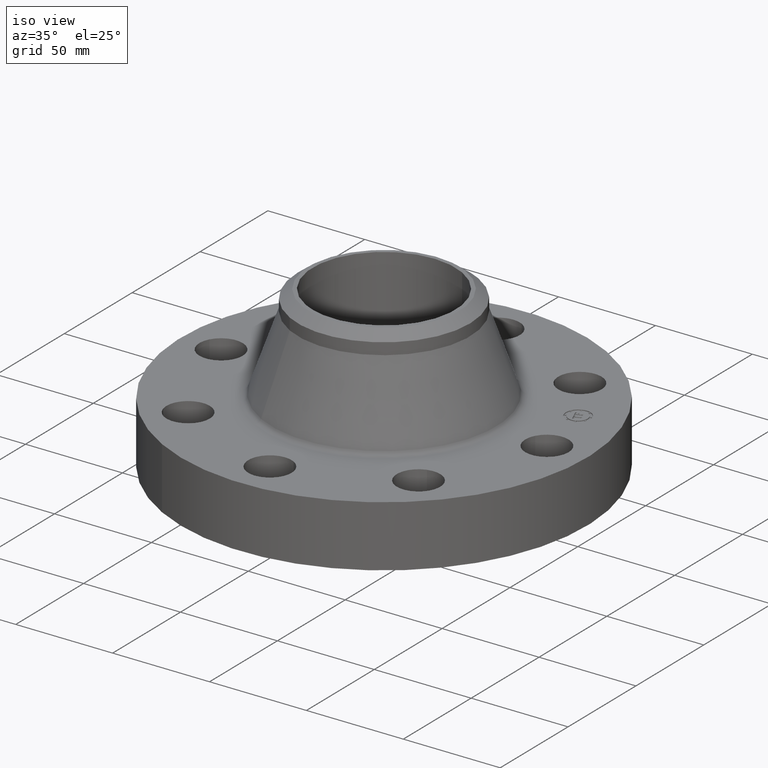
[diagram: clean part render]
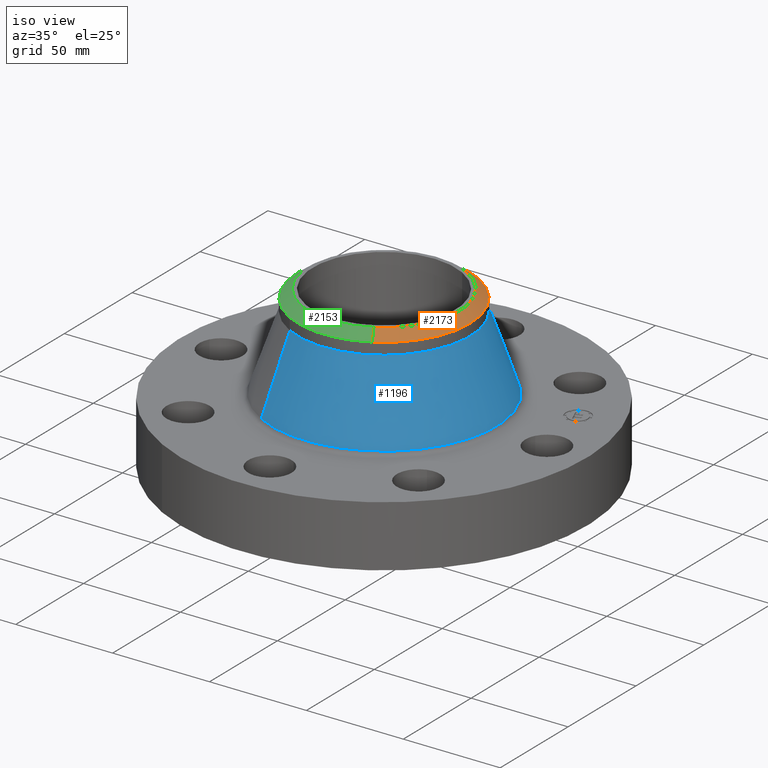
[diagram: same view with three faces highlighted in distinct colors, each labeled with its STEP entity id]
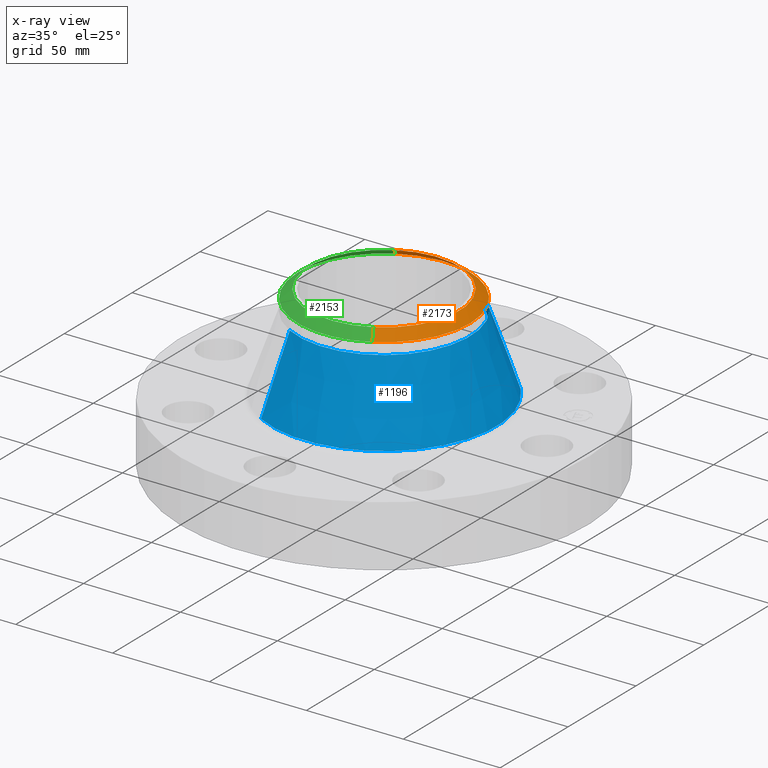
[diagram: x-ray of the same camera — body ghosted, the three highlighted faces saturated]
A machine part, iso view with three faces highlighted in distinct colors.
The next image is the same camera in x-ray (body ghosted, the three faces saturated) — at least one of them is partly hidden behind the body in this view.
Their STEP definitions:

[orange] entity #2173 — the highlighted conical surface has half-angle 52.5 deg.
#1513=AXIS2_PLACEMENT_3D('Circle Axis2P3D',#1511,#1512,$) ;
#2103=AXIS2_PLACEMENT_3D('Circle Axis2P3D',#2101,#2102,$) ;
#2164=AXIS2_PLACEMENT_3D('Cone Axis2P3D',#2161,#2162,#2163) ;
#1466=CARTESIAN_POINT('Vertex',(0.838994692563,1.53576948332,3.08022135152)) ;
#1480=CARTESIAN_POINT('Vertex',(-0.838994692564,1.53576948332,3.08022135152)) ;
#1484=CARTESIAN_POINT('Control Point',(-0.838994692564,1.53576948332,3.08022135152)) ;
#1485=CARTESIAN_POINT('Control Point',(-0.5318407959,1.70356842183,3.08022135152)) ;
#1486=CARTESIAN_POINT('Control Point',(-0.182740466362,1.79463337155,3.08022135151)) ;
#1487=CARTESIAN_POINT('Control Point',(0.182740466361,1.79463337155,3.0802213515)) ;
#1488=CARTESIAN_POINT('Control Point',(0.531840795899,1.70356842183,3.0802213515)) ;
#1489=CARTESIAN_POINT('Control Point',(0.838994692563,1.53576948332,3.08022135149)) ;
#1511=CARTESIAN_POINT('Axis2P3D Location',(0.,0.,3.08022135152)) ;
#1515=CARTESIAN_POINT('Vertex',(0.838994692564,-1.53576948332,3.08022135152)) ;
#2101=CARTESIAN_POINT('Axis2P3D Location',(-1.28116589953E-011,-4.33179301703E-012,3.25000000001)) ;
#2105=CARTESIAN_POINT('Vertex',(0.73291707339,-1.34159570387,3.25000000001)) ;
#2107=CARTESIAN_POINT('Vertex',(-0.732917073391,1.34159570387,3.25000000001)) ;
#2136=CARTESIAN_POINT('Line Origine',(0.785955882974,-1.43868259359,3.16511067575)) ;
#2141=CARTESIAN_POINT('Line Origine',(-0.785955882974,1.43868259359,3.16511067575)) ;
#2161=CARTESIAN_POINT('Axis2P3D Location',(0.,0.,3.25000000001)) ;
#1512=DIRECTION('Axis2P3D Direction',(-0.,0.,-0.0393700787402)) ;
#2102=DIRECTION('Axis2P3D Direction',(0.,0.,-0.0393700787402)) ;
#2137=DIRECTION('Vector Direction',(0.014974561121,-0.02741075027,-0.023966985394)) ;
#2142=DIRECTION('Vector Direction',(-0.014974561121,0.02741075027,-0.023966985394)) ;
#2162=DIRECTION('Axis2P3D Direction',(-0.,-0.,-0.0393700787402)) ;
#2163=DIRECTION('Axis2P3D XDirection',(-0.0188750212049,0.0345504945626,0.)) ;
#2138=VECTOR('Line Direction',#2137,0.0393700787402) ;
#2143=VECTOR('Line Direction',#2142,0.0393700787402) ;
#2167=ORIENTED_EDGE('',*,*,#2145,.F.) ;
#2168=ORIENTED_EDGE('',*,*,#2109,.F.) ;
#2169=ORIENTED_EDGE('',*,*,#2140,.T.) ;
#2170=ORIENTED_EDGE('',*,*,#1517,.T.) ;
#2171=ORIENTED_EDGE('',*,*,#1490,.F.) ;
#2173=ADVANCED_FACE('PartBody',(#2172),#2165,.T.) ;
#1483=B_SPLINE_CURVE_WITH_KNOTS('',5,(#1484,#1485,#1486,#1487,#1488,#1489),.UNSPECIFIED.,.F.,.U.,(6,6),(-22.2250000002,22.2250000002),.UNSPECIFIED.) ;
#1514=CIRCLE('generated circle',#1513,1.75000000001) ;
#2104=CIRCLE('generated circle',#2103,1.52874015748) ;
#2165=CONICAL_SURFACE('Cone',#2164,1.52874015749,0.916297857297) ;
#1490=EDGE_CURVE('',#1481,#1467,#1483,.T.) ;
#1517=EDGE_CURVE('',#1516,#1467,#1514,.F.) ;
#2109=EDGE_CURVE('',#2106,#2108,#2104,.F.) ;
#2140=EDGE_CURVE('',#2106,#1516,#2139,.T.) ;
#2145=EDGE_CURVE('',#2108,#1481,#2144,.T.) ;
#2166=EDGE_LOOP('',(#2167,#2168,#2169,#2170,#2171)) ;
#2172=FACE_OUTER_BOUND('',#2166,.T.) ;
#2139=LINE('Line',#2136,#2138) ;
#2144=LINE('Line',#2141,#2143) ;
#1467=VERTEX_POINT('',#1466) ;
#1481=VERTEX_POINT('',#1480) ;
#1516=VERTEX_POINT('',#1515) ;
#2106=VERTEX_POINT('',#2105) ;
#2108=VERTEX_POINT('',#2107) ;

[blue] entity #1196 — the highlighted conical surface has half-angle 19.357 deg.
#1015=AXIS2_PLACEMENT_3D('Circle Axis2P3D',#1013,#1014,$) ;
#1183=AXIS2_PLACEMENT_3D('Cone Axis2P3D',#1180,#1181,#1182) ;
#1187=AXIS2_PLACEMENT_3D('Circle Axis2P3D',#1185,#1186,$) ;
#979=CARTESIAN_POINT('Vertex',(-1.09396064072,-2.00248152086,1.33022511755)) ;
#986=CARTESIAN_POINT('Vertex',(1.09396064072,2.00248152086,1.33022511755)) ;
#1013=CARTESIAN_POINT('Axis2P3D Location',(0.,0.,1.33022511755)) ;
#1147=CARTESIAN_POINT('Line Origine',(-0.966477666638,-1.76912550209,2.0871129983)) ;
#1151=CARTESIAN_POINT('Vertex',(-0.838994692563,-1.53576948332,2.84400087905)) ;
#1158=CARTESIAN_POINT('Vertex',(0.838994692562,1.53576948332,2.84400087905)) ;
#1161=CARTESIAN_POINT('Line Origine',(0.966477666638,1.76912550209,2.0871129983)) ;
#1180=CARTESIAN_POINT('Axis2P3D Location',(0.,0.,2.84400087905)) ;
#1185=CARTESIAN_POINT('Axis2P3D Location',(0.,0.,2.84400087905)) ;
#1014=DIRECTION('Axis2P3D Direction',(-0.,0.,-0.0393700787402)) ;
#1148=DIRECTION('Vector Direction',(-0.00625626458109,-0.0114520154995,-0.0371444961535)) ;
#1162=DIRECTION('Vector Direction',(0.00625626458109,0.0114520154995,-0.0371444961535)) ;
#1181=DIRECTION('Axis2P3D Direction',(0.,0.,-0.0393700787402)) ;
#1182=DIRECTION('Axis2P3D XDirection',(0.0188750212049,0.0345504945626,0.)) ;
#1186=DIRECTION('Axis2P3D Direction',(-0.,0.,-0.0393700787402)) ;
#1149=VECTOR('Line Direction',#1148,0.0393700787402) ;
#1163=VECTOR('Line Direction',#1162,0.0393700787402) ;
#1191=ORIENTED_EDGE('',*,*,#1017,.F.) ;
#1192=ORIENTED_EDGE('',*,*,#1165,.T.) ;
#1193=ORIENTED_EDGE('',*,*,#1189,.T.) ;
#1194=ORIENTED_EDGE('',*,*,#1153,.F.) ;
#1196=ADVANCED_FACE('PartBody',(#1195),#1184,.T.) ;
#1016=CIRCLE('generated circle',#1015,2.28181553261) ;
#1188=CIRCLE('generated circle',#1187,1.75000000001) ;
#1184=CONICAL_SURFACE('Cone',#1183,1.75000000001,0.337847830751) ;
#1017=EDGE_CURVE('',#987,#980,#1016,.T.) ;
#1153=EDGE_CURVE('',#980,#1152,#1150,.F.) ;
#1165=EDGE_CURVE('',#987,#1159,#1164,.F.) ;
#1189=EDGE_CURVE('',#1159,#1152,#1188,.T.) ;
#1190=EDGE_LOOP('',(#1191,#1192,#1193,#1194)) ;
#1195=FACE_OUTER_BOUND('',#1190,.T.) ;
#1150=LINE('Line',#1147,#1149) ;
#1164=LINE('Line',#1161,#1163) ;
#980=VERTEX_POINT('',#979) ;
#987=VERTEX_POINT('',#986) ;
#1152=VERTEX_POINT('',#1151) ;
#1159=VERTEX_POINT('',#1158) ;

[green] entity #2153 — the highlighted conical surface has half-angle 52.5 deg.
#1478=AXIS2_PLACEMENT_3D('Circle Axis2P3D',#1476,#1477,$) ;
#1520=AXIS2_PLACEMENT_3D('Circle Axis2P3D',#1518,#1519,$) ;
#2112=AXIS2_PLACEMENT_3D('Circle Axis2P3D',#2110,#2111,$) ;
#2134=AXIS2_PLACEMENT_3D('Cone Axis2P3D',#2131,#2132,#2133) ;
#1473=CARTESIAN_POINT('Vertex',(-0.838994692563,-1.53576948332,3.08022135152)) ;
#1476=CARTESIAN_POINT('Axis2P3D Location',(0.,0.,3.08022135152)) ;
#1480=CARTESIAN_POINT('Vertex',(-0.838994692564,1.53576948332,3.08022135152)) ;
#1515=CARTESIAN_POINT('Vertex',(0.838994692564,-1.53576948332,3.08022135152)) ;
#1518=CARTESIAN_POINT('Axis2P3D Location',(0.,0.,3.08022135152)) ;
#2105=CARTESIAN_POINT('Vertex',(0.73291707339,-1.34159570387,3.25000000001)) ;
#2107=CARTESIAN_POINT('Vertex',(-0.732917073391,1.34159570387,3.25000000001)) ;
#2110=CARTESIAN_POINT('Axis2P3D Location',(1.28116589953E-011,9.66589887745E-012,3.25000000001)) ;
#2131=CARTESIAN_POINT('Axis2P3D Location',(0.,0.,3.25000000001)) ;
#2136=CARTESIAN_POINT('Line Origine',(0.785955882974,-1.43868259359,3.16511067575)) ;
#2141=CARTESIAN_POINT('Line Origine',(-0.785955882974,1.43868259359,3.16511067575)) ;
#1477=DIRECTION('Axis2P3D Direction',(-0.,0.,-0.0393700787402)) ;
#1519=DIRECTION('Axis2P3D Direction',(-0.,0.,-0.0393700787402)) ;
#2111=DIRECTION('Axis2P3D Direction',(0.,0.,-0.0393700787402)) ;
#2132=DIRECTION('Axis2P3D Direction',(-0.,-0.,-0.0393700787402)) ;
#2133=DIRECTION('Axis2P3D XDirection',(0.0188750212049,-0.0345504945626,0.)) ;
#2137=DIRECTION('Vector Direction',(0.014974561121,-0.02741075027,-0.023966985394)) ;
#2142=DIRECTION('Vector Direction',(-0.014974561121,0.02741075027,-0.023966985394)) ;
#2138=VECTOR('Line Direction',#2137,0.0393700787402) ;
#2143=VECTOR('Line Direction',#2142,0.0393700787402) ;
#2147=ORIENTED_EDGE('',*,*,#2140,.F.) ;
#2148=ORIENTED_EDGE('',*,*,#2114,.F.) ;
#2149=ORIENTED_EDGE('',*,*,#2145,.T.) ;
#2150=ORIENTED_EDGE('',*,*,#1482,.T.) ;
#2151=ORIENTED_EDGE('',*,*,#1522,.F.) ;
#2153=ADVANCED_FACE('PartBody',(#2152),#2135,.T.) ;
#1479=CIRCLE('generated circle',#1478,1.75000000001) ;
#1521=CIRCLE('generated circle',#1520,1.75000000001) ;
#2113=CIRCLE('generated circle',#2112,1.52874015748) ;
#2135=CONICAL_SURFACE('Cone',#2134,1.52874015749,0.916297857297) ;
#1482=EDGE_CURVE('',#1481,#1474,#1479,.F.) ;
#1522=EDGE_CURVE('',#1516,#1474,#1521,.T.) ;
#2114=EDGE_CURVE('',#2108,#2106,#2113,.F.) ;
#2140=EDGE_CURVE('',#2106,#1516,#2139,.T.) ;
#2145=EDGE_CURVE('',#2108,#1481,#2144,.T.) ;
#2146=EDGE_LOOP('',(#2147,#2148,#2149,#2150,#2151)) ;
#2152=FACE_OUTER_BOUND('',#2146,.T.) ;
#2139=LINE('Line',#2136,#2138) ;
#2144=LINE('Line',#2141,#2143) ;
#1474=VERTEX_POINT('',#1473) ;
#1481=VERTEX_POINT('',#1480) ;
#1516=VERTEX_POINT('',#1515) ;
#2106=VERTEX_POINT('',#2105) ;
#2108=VERTEX_POINT('',#2107) ;